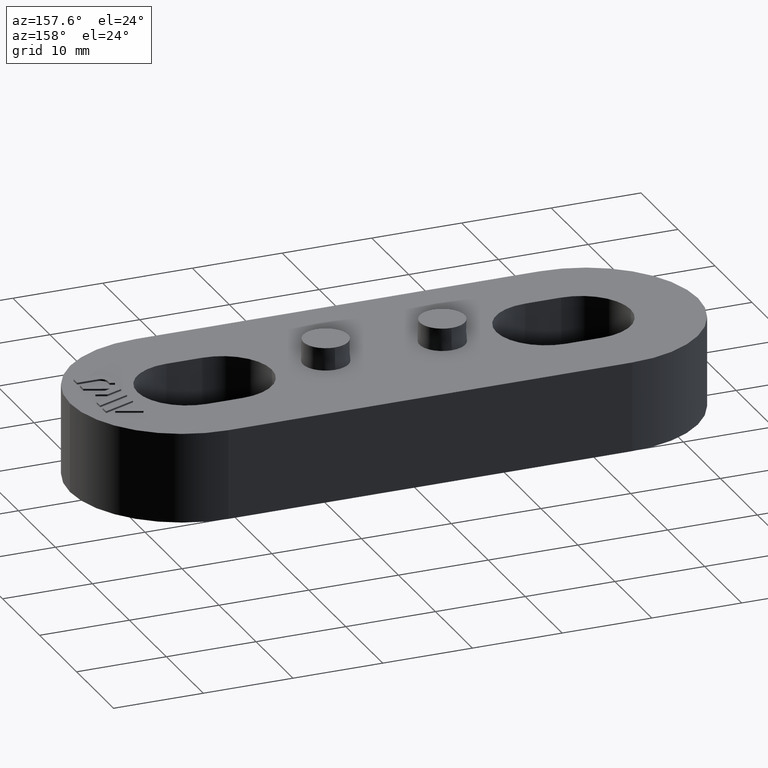
[diagram: clean part render]
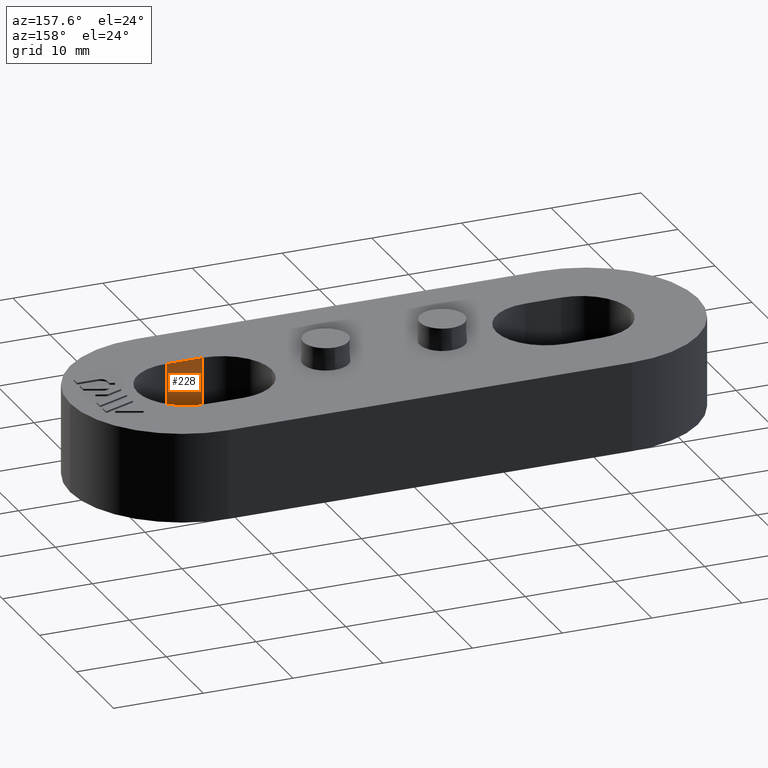
[diagram: same view with one face highlighted and labeled with its STEP entity id]
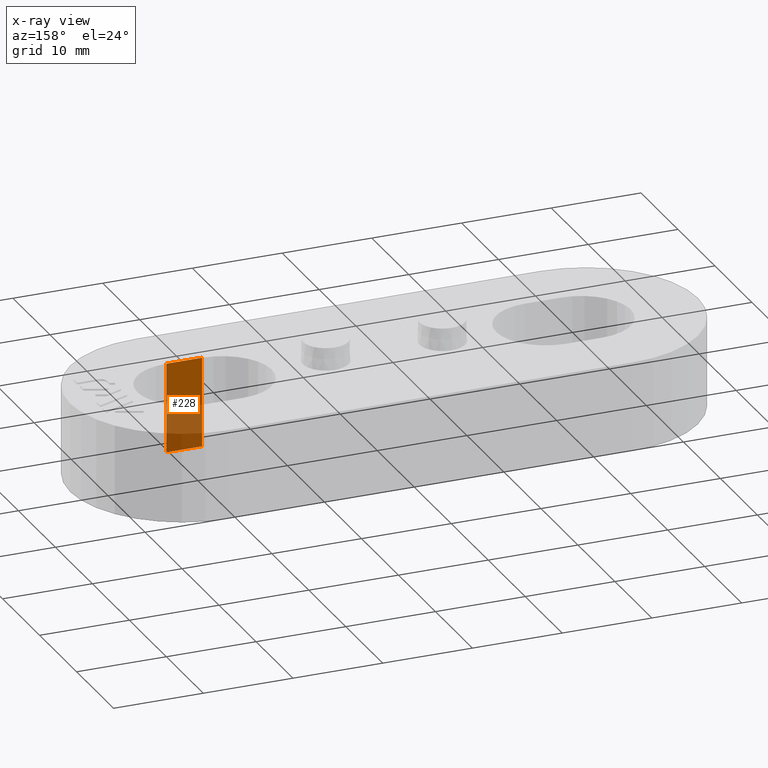
[diagram: x-ray of the same camera — body ghosted, the highlighted face saturated]
A machine part, auxiliary view. The second image highlights one B-rep face of the part: STEP entity #228.
The next image is the same camera in x-ray: the body ghosted, the highlighted face saturated — about 50% of this face is hidden behind the body in this view.
In plain terms, the highlighted planar face has unit normal (0, -1, 0).
Its self-contained STEP definition (entity closure, byte-faithful):
#228 = ADVANCED_FACE( '', ( #638 ), #639, .F. );
#638 = FACE_OUTER_BOUND( '', #1114, .T. );
#639 = PLANE( '', #1115 );
#1114 = EDGE_LOOP( '', ( #2531, #2532, #2533, #2534 ) );
#1115 = AXIS2_PLACEMENT_3D( '', #2535, #2536, #2537 );
#2531 = ORIENTED_EDGE( '', *, *, #3434, .F. );
#2532 = ORIENTED_EDGE( '', *, *, #3240, .F. );
#2533 = ORIENTED_EDGE( '', *, *, #3433, .T. );
#2534 = ORIENTED_EDGE( '', *, *, #2988, .F. );
#2535 = CARTESIAN_POINT( '', ( 17.2500000000000, -5.49745920242708, -9.99999999483273E-006 ) );
#2536 = DIRECTION( '', ( 5.78241158658935E-017, -1.00000000000000, 6.12303176911189E-017 ) );
#2537 = DIRECTION( '', ( -1.00000000000000, -5.78241158658935E-017, 3.54058898467673E-033 ) );
#2988 = EDGE_CURVE( '', #3549, #3551, #3552, .F. );
#3240 = EDGE_CURVE( '', #4015, #4006, #4017, .T. );
#3433 = EDGE_CURVE( '', #4015, #3551, #4300, .T. );
#3434 = EDGE_CURVE( '', #4006, #3549, #4301, .T. );
#3549 = VERTEX_POINT( '', #4459 );
#3551 = VERTEX_POINT( '', #4461 );
#3552 = LINE( '', #4462, #4463 );
#4006 = VERTEX_POINT( '', #5106 );
#4015 = VERTEX_POINT( '', #5116 );
#4017 = LINE( '', #5118, #5119 );
#4300 = LINE( '', #5592, #5593 );
#4301 = LINE( '', #5594, #5595 );
#4459 = CARTESIAN_POINT( '', ( 21.2500000000000, -5.49745920242708, 9.99999999999999 ) );
#4461 = CARTESIAN_POINT( '', ( 17.2500000000000, -5.49745920242708, 9.99999999999999 ) );
#4462 = CARTESIAN_POINT( '', ( 21.7500000000000, -5.49745920242708, 9.99999999999999 ) );
#4463 = VECTOR( '', #5788, 1000.00000000000 );
#5106 = CARTESIAN_POINT( '', ( 21.2500000000000, -5.49745920242708, -9.99999999483273E-006 ) );
#5116 = CARTESIAN_POINT( '', ( 17.2500000000000, -5.49745920242708, -9.99999999483273E-006 ) );
#5118 = CARTESIAN_POINT( '', ( 17.2500000000000, -5.49745920242708, -9.99999999483273E-006 ) );
#5119 = VECTOR( '', #6162, 1000.00000000000 );
#5592 = CARTESIAN_POINT( '', ( 17.2500000000000, -5.49745920242708, -9.99999999483273E-006 ) );
#5593 = VECTOR( '', #6359, 1000.00000000000 );
#5594 = CARTESIAN_POINT( '', ( 21.2500000000000, -5.49745920242708, -9.99999999483273E-006 ) );
#5595 = VECTOR( '', #6360, 1000.00000000000 );
#5788 = DIRECTION( '', ( 1.00000000000000, 6.12303176911189E-017, -3.74915180455534E-033 ) );
#6162 = DIRECTION( '', ( 1.00000000000000, 5.78241158658936E-017, -3.54058898467673E-033 ) );
#6359 = DIRECTION( '', ( 0.000000000000000, 6.12303176911189E-017, 1.00000000000000 ) );
#6360 = DIRECTION( '', ( 0.000000000000000, 6.12303176911189E-017, 1.00000000000000 ) );